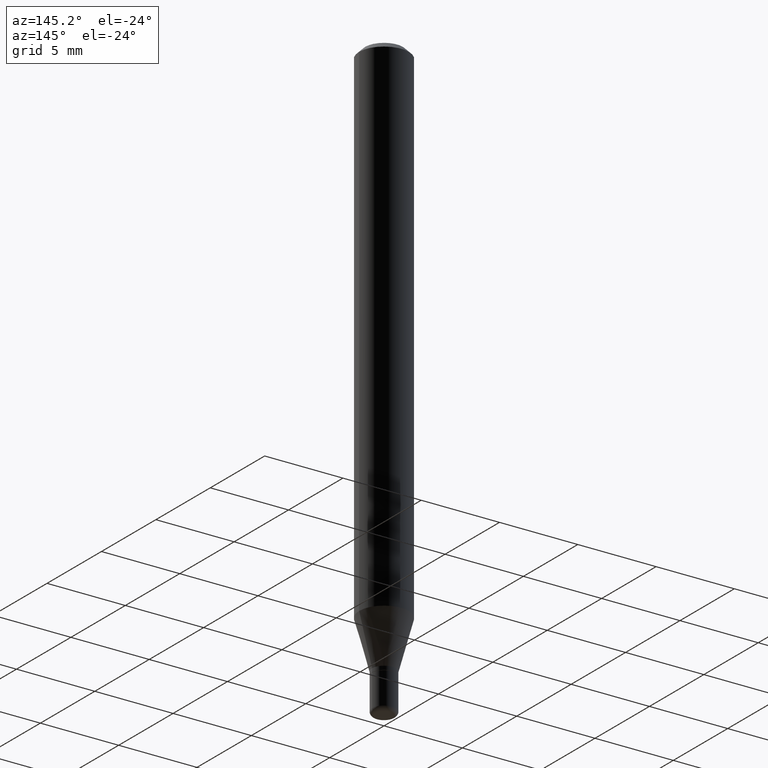
[diagram: clean part render]
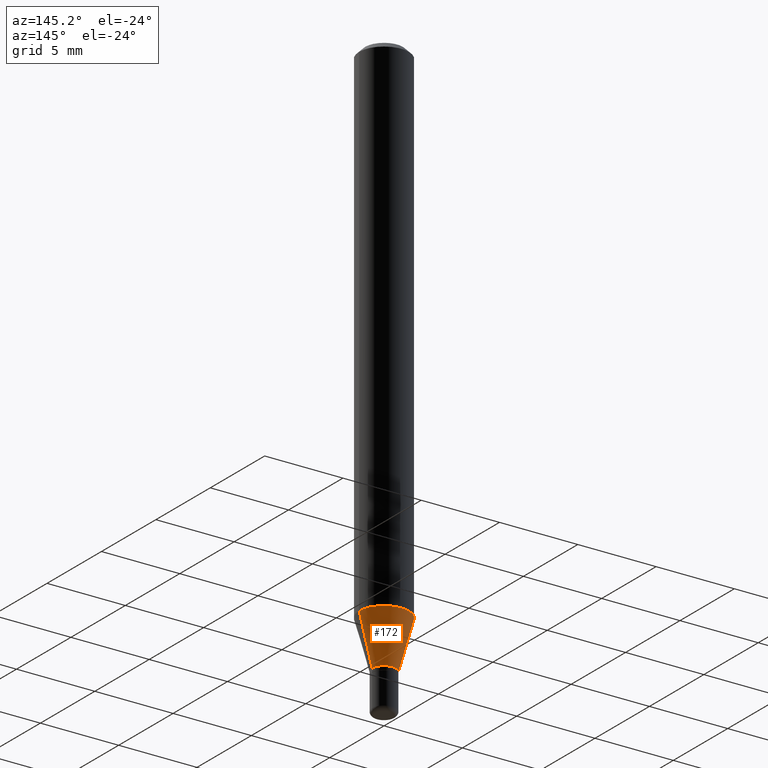
[diagram: same view with one face highlighted and labeled with its STEP entity id]
A machine part, auxiliary view. The second image highlights one B-rep face of the part: STEP entity #172.
In plain terms, the highlighted conical surface has half-angle 15 deg.
Its self-contained STEP definition (entity closure, byte-faithful):
#17 = VERTEX_POINT ( 'NONE', #340 ) ;
#30 = CIRCLE ( 'NONE', #105, 0.02999999999999997807 ) ;
#45 = ORIENTED_EDGE ( 'NONE', *, *, #98, .T. ) ;
#62 = VERTEX_POINT ( 'NONE', #344 ) ;
#82 = EDGE_CURVE ( 'NONE', #17, #250, #30, .T. ) ;
#95 = VECTOR ( 'NONE', #343, 39.37007874015748854 ) ;
#98 = EDGE_CURVE ( 'NONE', #250, #406, #133, .T. ) ;
#105 = AXIS2_PLACEMENT_3D ( 'NONE', #389, #124, #485 ) ;
#112 = CIRCLE ( 'NONE', #430, 0.06250000000000000000 ) ;
#124 = DIRECTION ( 'NONE',  ( -2.445468806185136597E-29, 3.491481338843145583E-15, 1.000000000000000000 ) ) ;
#127 = CARTESIAN_POINT ( 'NONE',  ( -0.02999999999999997807, -4.674911053652373807E-15, -1.400000000000000133 ) ) ;
#132 = LINE ( 'NONE', #450, #515 ) ;
#133 = LINE ( 'NONE', #127, #95 ) ;
#172 = ADVANCED_FACE ( 'NONE', ( #234 ), #198, .T. ) ;
#197 = CARTESIAN_POINT ( 'NONE',  ( 3.423656328659191123E-29, -4.888073874380404052E-15, -1.400000000000000133 ) ) ;
#198 = CONICAL_SURFACE ( 'NONE', #408, 0.02999999999999997807, 0.2617993877991498519 ) ;
#226 = EDGE_CURVE ( 'NONE', #17, #62, #132, .T. ) ;
#234 = FACE_OUTER_BOUND ( 'NONE', #386, .T. ) ;
#235 = DIRECTION ( 'NONE',  ( 1.000000000000000000, -6.982962677686262766E-15, 0.000000000000000000 ) ) ;
#250 = VERTEX_POINT ( 'NONE', #307 ) ;
#272 = CARTESIAN_POINT ( 'NONE',  ( 3.127041379086440337E-29, -4.464586337497564496E-15, -1.278708348754011626 ) ) ;
#281 = DIRECTION ( 'NONE',  ( -2.445468806185136597E-29, 3.491481338843145583E-15, 1.000000000000000000 ) ) ;
#307 = CARTESIAN_POINT ( 'NONE',  ( -0.02999999999999997807, -4.347704090649937844E-15, -1.400000000000000133 ) ) ;
#318 = CARTESIAN_POINT ( 'NONE',  ( -0.06250000000000000000, -4.020497127647501880E-15, -1.278708348754011626 ) ) ;
#340 = CARTESIAN_POINT ( 'NONE',  ( 0.02999999999999997807, -5.097562754710991580E-15, -1.400000000000000133 ) ) ;
#343 = DIRECTION ( 'NONE',  ( -0.2588190451025211281, 5.211531920934547886E-15, 0.9659258262890679791 ) ) ;
#344 = CARTESIAN_POINT ( 'NONE',  ( 0.06250000000000000000, -4.901021504852956166E-15, -1.278708348754011626 ) ) ;
#376 = ORIENTED_EDGE ( 'NONE', *, *, #477, .F. ) ;
#386 = EDGE_LOOP ( 'NONE', ( #415, #45, #376, #391 ) ) ;
#389 = CARTESIAN_POINT ( 'NONE',  ( 3.423656328659191123E-29, -4.888073874380404052E-15, -1.400000000000000133 ) ) ;
#391 = ORIENTED_EDGE ( 'NONE', *, *, #226, .F. ) ;
#403 = DIRECTION ( 'NONE',  ( 1.000000000000000000, -6.982962677686273021E-15, 0.000000000000000000 ) ) ;
#406 = VERTEX_POINT ( 'NONE', #318 ) ;
#408 = AXIS2_PLACEMENT_3D ( 'NONE', #197, #281, #403 ) ;
#415 = ORIENTED_EDGE ( 'NONE', *, *, #82, .T. ) ;
#421 = DIRECTION ( 'NONE',  ( 0.2588190451025211281, 1.565188264969622954E-15, 0.9659258262890679791 ) ) ;
#430 = AXIS2_PLACEMENT_3D ( 'NONE', #272, #508, #235 ) ;
#450 = CARTESIAN_POINT ( 'NONE',  ( 0.02999999999999997807, -5.097562754710991580E-15, -1.400000000000000133 ) ) ;
#477 = EDGE_CURVE ( 'NONE', #62, #406, #112, .T. ) ;
#485 = DIRECTION ( 'NONE',  ( 1.000000000000000000, -6.982962677686273021E-15, 0.000000000000000000 ) ) ;
#508 = DIRECTION ( 'NONE',  ( -2.445468806185136597E-29, 3.491481338843145583E-15, 1.000000000000000000 ) ) ;
#515 = VECTOR ( 'NONE', #421, 39.37007874015748854 ) ;